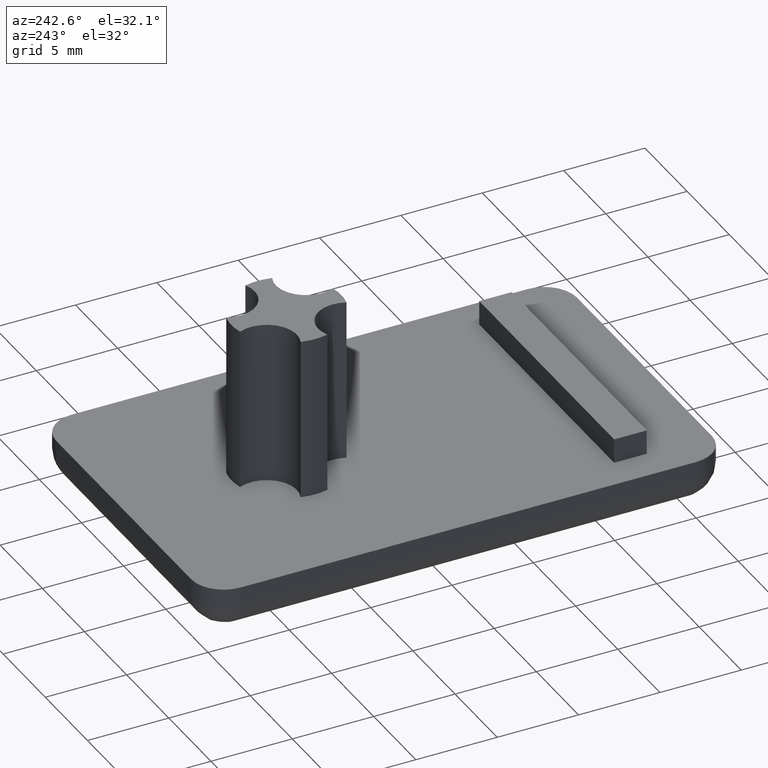
[diagram: clean part render]
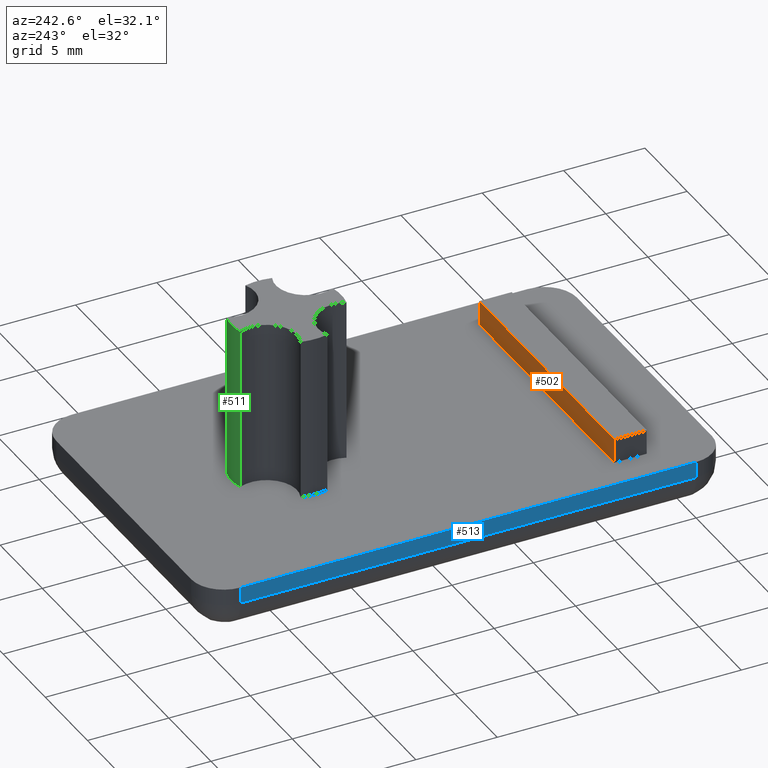
[diagram: same view with three faces highlighted in distinct colors, each labeled with its STEP entity id]
A machine part, auxiliary view with three faces highlighted in distinct colors.
Their STEP definitions:

[orange] entity #502 — the highlighted planar face has unit normal (0, 1, 0).
#23=PLANE('',#551);
#49=FACE_OUTER_BOUND('',#80,.T.);
#80=EDGE_LOOP('',(#386,#387,#388,#389));
#114=LINE('',#820,#154);
#122=LINE('',#835,#162);
#123=LINE('',#837,#163);
#124=LINE('',#838,#164);
#154=VECTOR('',#659,1.5);
#162=VECTOR('',#671,1.5);
#163=VECTOR('',#674,16.);
#164=VECTOR('',#675,16.);
#227=VERTEX_POINT('',#816);
#229=VERTEX_POINT('',#819);
#233=VERTEX_POINT('',#831);
#234=VERTEX_POINT('',#833);
#284=EDGE_CURVE('',#227,#229,#114,.T.);
#292=EDGE_CURVE('',#233,#234,#122,.T.);
#293=EDGE_CURVE('',#233,#227,#123,.T.);
#294=EDGE_CURVE('',#229,#234,#124,.T.);
#386=ORIENTED_EDGE('',*,*,#293,.F.);
#387=ORIENTED_EDGE('',*,*,#292,.T.);
#388=ORIENTED_EDGE('',*,*,#294,.F.);
#389=ORIENTED_EDGE('',*,*,#284,.F.);
#502=ADVANCED_FACE('',(#49),#23,.T.);
#551=AXIS2_PLACEMENT_3D('',#836,#672,#673);
#659=DIRECTION('',(0.,0.,1.));
#671=DIRECTION('',(0.,0.,1.));
#672=DIRECTION('center_axis',(0.,1.,0.));
#673=DIRECTION('ref_axis',(-1.,0.,0.));
#674=DIRECTION('',(1.,0.,0.));
#675=DIRECTION('',(-1.,0.,0.));
#816=CARTESIAN_POINT('',(7.99999999999998,-16.,3.));
#819=CARTESIAN_POINT('',(7.99999999999998,-16.,4.5));
#820=CARTESIAN_POINT('',(7.99999999999998,-16.,3.));
#831=CARTESIAN_POINT('',(-8.00000000000001,-16.,3.));
#833=CARTESIAN_POINT('',(-8.00000000000001,-16.,4.5));
#835=CARTESIAN_POINT('',(-8.00000000000001,-16.,3.));
#836=CARTESIAN_POINT('Origin',(7.99999999999998,-16.,3.));
#837=CARTESIAN_POINT('',(3.99999999999999,-16.,3.));
#838=CARTESIAN_POINT('',(-8.00000000000001,-16.,4.5));

[blue] entity #513 — the highlighted planar face has unit normal (-1, 0, 0).
#26=PLANE('',#578);
#60=FACE_OUTER_BOUND('',#91,.T.);
#91=EDGE_LOOP('',(#434,#435,#436,#437));
#101=LINE('',#772,#141);
#107=LINE('',#801,#147);
#133=LINE('',#891,#173);
#134=LINE('',#892,#174);
#141=VECTOR('',#602,28.);
#147=VECTOR('',#640,1.);
#173=VECTOR('',#738,28.);
#174=VECTOR('',#739,1.);
#214=VERTEX_POINT('',#766);
#216=VERTEX_POINT('',#770);
#223=VERTEX_POINT('',#799);
#251=VERTEX_POINT('',#890);
#261=EDGE_CURVE('',#216,#214,#101,.T.);
#276=EDGE_CURVE('',#216,#223,#107,.T.);
#319=EDGE_CURVE('',#251,#223,#133,.T.);
#320=EDGE_CURVE('',#214,#251,#134,.T.);
#434=ORIENTED_EDGE('',*,*,#261,.F.);
#435=ORIENTED_EDGE('',*,*,#276,.T.);
#436=ORIENTED_EDGE('',*,*,#319,.F.);
#437=ORIENTED_EDGE('',*,*,#320,.F.);
#513=ADVANCED_FACE('',(#60),#26,.T.);
#578=AXIS2_PLACEMENT_3D('',#889,#736,#737);
#602=DIRECTION('',(5.55111512312578E-016,1.,0.));
#640=DIRECTION('',(0.,0.,1.));
#736=DIRECTION('center_axis',(-1.,5.55111512312578E-016,0.));
#737=DIRECTION('ref_axis',(-5.32907051820075E-016,-1.,0.));
#738=DIRECTION('',(-5.55111512312578E-016,-1.,0.));
#739=DIRECTION('',(0.,0.,1.));
#766=CARTESIAN_POINT('',(-9.99999999999999,8.00000000000002,2.));
#770=CARTESIAN_POINT('',(-10.,-20.,2.));
#772=CARTESIAN_POINT('',(-10.,1.00000000000002,2.));
#799=CARTESIAN_POINT('',(-10.,-20.,3.));
#801=CARTESIAN_POINT('',(-10.,-20.,0.));
#889=CARTESIAN_POINT('Origin',(-9.99999999999999,8.00000000000002,0.));
#890=CARTESIAN_POINT('',(-9.99999999999999,8.00000000000002,3.));
#891=CARTESIAN_POINT('',(-9.99999999999999,8.00000000000002,3.));
#892=CARTESIAN_POINT('',(-9.99999999999999,8.00000000000002,0.));

[green] entity #511 — the highlighted cylindrical surface (partial cylindrical patch) has radius 3.375 mm, axis along (0, 0, 1).
#58=FACE_OUTER_BOUND('',#89,.T.);
#89=EDGE_LOOP('',(#422,#423,#424,#425));
#129=LINE('',#865,#169);
#132=LINE('',#884,#172);
#169=VECTOR('',#704,10.);
#172=VECTOR('',#727,10.);
#206=CIRCLE('',#575,3.375);
#207=CIRCLE('',#576,3.375);
#243=VERTEX_POINT('',#862);
#244=VERTEX_POINT('',#864);
#249=VERTEX_POINT('',#880);
#250=VERTEX_POINT('',#882);
#306=EDGE_CURVE('',#243,#244,#129,.T.);
#316=EDGE_CURVE('',#249,#250,#132,.T.);
#317=EDGE_CURVE('',#249,#243,#206,.T.);
#318=EDGE_CURVE('',#244,#250,#207,.T.);
#422=ORIENTED_EDGE('',*,*,#317,.F.);
#423=ORIENTED_EDGE('',*,*,#316,.T.);
#424=ORIENTED_EDGE('',*,*,#318,.F.);
#425=ORIENTED_EDGE('',*,*,#306,.F.);
#483=CYLINDRICAL_SURFACE('',#574,3.375);
#511=ADVANCED_FACE('',(#58),#483,.T.);
#574=AXIS2_PLACEMENT_3D('',#885,#728,#729);
#575=AXIS2_PLACEMENT_3D('',#886,#730,#731);
#576=AXIS2_PLACEMENT_3D('',#887,#732,#733);
#704=DIRECTION('',(0.,0.,1.));
#727=DIRECTION('',(0.,0.,1.));
#728=DIRECTION('center_axis',(0.,0.,1.));
#729=DIRECTION('ref_axis',(0.243072958079821,-0.970008008755766,0.));
#730=DIRECTION('center_axis',(0.,0.,-1.));
#731=DIRECTION('ref_axis',(0.243072958079825,0.970008008755765,0.));
#732=DIRECTION('center_axis',(0.,0.,1.));
#733=DIRECTION('ref_axis',(0.243072958079821,-0.970008008755766,0.));
#862=CARTESIAN_POINT('',(0.820371233519408,3.27377702955071,3.));
#864=CARTESIAN_POINT('',(0.820371233519408,3.27377702955071,13.));
#865=CARTESIAN_POINT('',(0.820371233519408,3.27377702955071,0.));
#880=CARTESIAN_POINT('',(-0.820371233519397,3.27377702955071,3.));
#882=CARTESIAN_POINT('',(-0.820371233519397,3.27377702955071,13.));
#884=CARTESIAN_POINT('',(-0.820371233519397,3.27377702955071,0.));
#885=CARTESIAN_POINT('Origin',(-8.520040887589E-018,0.,0.));
#886=CARTESIAN_POINT('Origin',(-8.520040887589E-018,0.,3.));
#887=CARTESIAN_POINT('Origin',(-8.520040887589E-018,0.,13.));